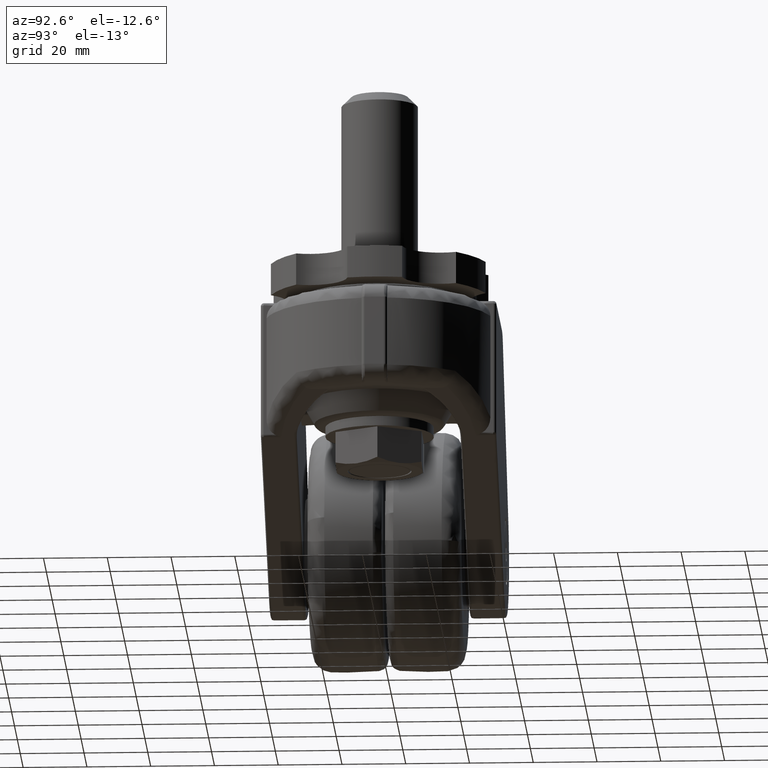
[diagram: clean part render]
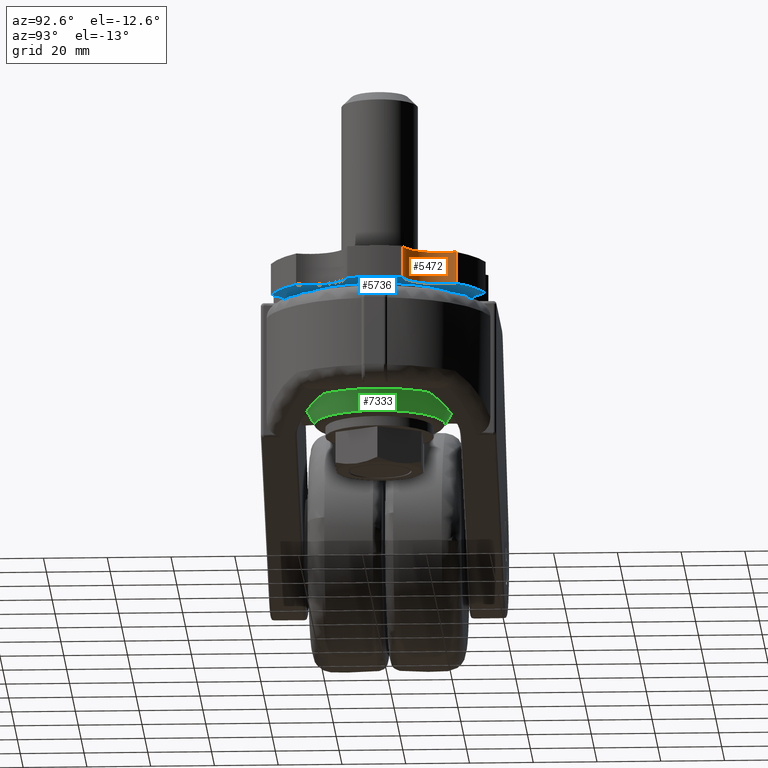
[diagram: same view with three faces highlighted in distinct colors, each labeled with its STEP entity id]
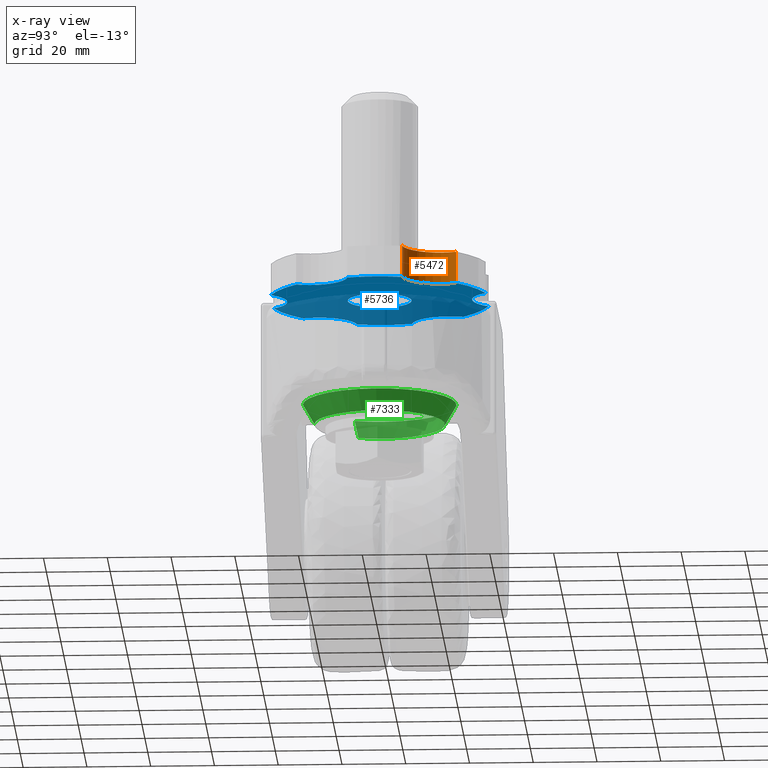
[diagram: x-ray of the same camera — body ghosted, the three highlighted faces saturated]
A machine part, auxiliary view with three faces highlighted in distinct colors.
The next image is the same camera in x-ray (body ghosted, the three faces saturated) — at least one of them is partly hidden behind the body in this view.
Their STEP definitions:

[orange] entity #5472 — the highlighted face is a freeform B-spline surface patch.
#5377=CARTESIAN_POINT('',(33.925804495054663,8.604635730023722,3.0));
#5378=VERTEX_POINT('',#5377);
#5393=CARTESIAN_POINT('',(33.925804495054663,8.604635730023722,-7.0));
#5394=VERTEX_POINT('',#5393);
#5408=CARTESIAN_POINT('',(33.925804495054663,8.604635730023722,-7.0));
#5409=CARTESIAN_POINT('',(33.925804495054663,8.604635730023722,3.0));
#5410=QUASI_UNIFORM_CURVE('',1,(#5408,#5409),.UNSPECIFIED.,.F.,.U.);
#5411=EDGE_CURVE('',#5394,#5378,#5410,.T.);
#5416=CARTESIAN_POINT('',(34.267670104709708,8.564173267682397,-7.250000000000001));
#5417=CARTESIAN_POINT('',(34.267670104709708,8.564173267682397,3.256250000000001));
#5418=CARTESIAN_POINT('',(16.900934444517677,10.367469110203469,-7.250000000000001));
#5419=CARTESIAN_POINT('',(16.900934444517677,10.367469110203469,3.256250000000001));
#5420=CARTESIAN_POINT('',(24.808137595117412,25.934470161201869,-7.250000000000001));
#5421=CARTESIAN_POINT('',(24.808137595117412,25.934470161201869,3.256250000000001));
#5429=(BOUNDED_SURFACE()B_SPLINE_SURFACE(1,2,((#5416,#5418,#5420),(#5417,#5419,#5421)),.UNSPECIFIED.,.F.,.F.,.U.)B_SPLINE_SURFACE_WITH_KNOTS((2,2),(3,3),(0.0,10.506250000000000),(0.0,25.254021671617618),.UNSPECIFIED.)GEOMETRIC_REPRESENTATION_ITEM()RATIONAL_B_SPLINE_SURFACE(((1.0,0.566406236924833,1.0),(1.0,0.566406236924833,1.0)))REPRESENTATION_ITEM('')SURFACE());
#5430=CARTESIAN_POINT('',(24.414735776652751,25.078290949668649,3.0));
#5431=VERTEX_POINT('',#5430);
#5432=CARTESIAN_POINT('',(24.414735776652751,25.078290949668649,3.0));
#5433=CARTESIAN_POINT('',(22.160540336856496,19.616817286234628,3.000000000000000));
#5434=CARTESIAN_POINT('',(25.114736137110540,14.500000030269490,3.0));
#5435=CARTESIAN_POINT('',(28.068931937364578,9.383182774304354,3.000000000000000));
#5436=CARTESIAN_POINT('',(33.925804495054649,8.604635730023711,3.0));
#5444=(BOUNDED_CURVE()B_SPLINE_CURVE(2,(#5432,#5433,#5434,#5435,#5436),.UNSPECIFIED.,.F.,.U.)B_SPLINE_CURVE_WITH_KNOTS((3,2,3),(0.0,0.500000000000000,1.0),.UNSPECIFIED.)CURVE()GEOMETRIC_REPRESENTATION_ITEM()RATIONAL_B_SPLINE_CURVE((1.0,0.897149957038940,1.0,0.897149957038940,1.0))REPRESENTATION_ITEM(''));
#5445=EDGE_CURVE('',#5431,#5378,#5444,.T.);
#5446=ORIENTED_EDGE('',*,*,#5445,.T.);
#5447=ORIENTED_EDGE('',*,*,#5411,.F.);
#5448=CARTESIAN_POINT('',(24.414735776652751,25.078290949668649,-7.0));
#5449=VERTEX_POINT('',#5448);
#5450=CARTESIAN_POINT('',(24.414735776652751,25.078290949668649,-7.0));
#5451=CARTESIAN_POINT('',(22.160540336856496,19.616817286234628,-7.000000000000001));
#5452=CARTESIAN_POINT('',(25.114736137110540,14.500000030269490,-7.0));
#5453=CARTESIAN_POINT('',(28.068931937364578,9.383182774304354,-7.000000000000001));
#5454=CARTESIAN_POINT('',(33.925804495054649,8.604635730023711,-7.0));
#5462=(BOUNDED_CURVE()B_SPLINE_CURVE(2,(#5450,#5451,#5452,#5453,#5454),.UNSPECIFIED.,.F.,.U.)B_SPLINE_CURVE_WITH_KNOTS((3,2,3),(0.0,0.500000000000000,1.0),.UNSPECIFIED.)CURVE()GEOMETRIC_REPRESENTATION_ITEM()RATIONAL_B_SPLINE_CURVE((1.0,0.897149957038940,1.0,0.897149957038940,1.0))REPRESENTATION_ITEM(''));
#5463=EDGE_CURVE('',#5449,#5394,#5462,.T.);
#5464=ORIENTED_EDGE('',*,*,#5463,.F.);
#5465=CARTESIAN_POINT('',(24.414735776652751,25.078290949668649,-7.0));
#5466=CARTESIAN_POINT('',(24.414735776652751,25.078290949668649,3.0));
#5467=QUASI_UNIFORM_CURVE('',1,(#5465,#5466),.UNSPECIFIED.,.F.,.U.);
#5468=EDGE_CURVE('',#5449,#5431,#5467,.T.);
#5469=ORIENTED_EDGE('',*,*,#5468,.T.);
#5470=EDGE_LOOP('',(#5446,#5447,#5464,#5469));
#5471=FACE_OUTER_BOUND('',#5470,.T.);
#5472=ADVANCED_FACE('',(#5471),#5429,.F.);

[blue] entity #5736 — the highlighted face is a freeform B-spline surface patch.
#4309=CARTESIAN_POINT('',(0.087265355341955,-9.999619230638585,-7.000000000000001));
#4310=VERTEX_POINT('',#4309);
#4316=CARTESIAN_POINT('',(-10.0,0.0,-7.0));
#4317=VERTEX_POINT('',#4316);
#4318=CARTESIAN_POINT('',(-10.0,0.0,-7.0));
#4319=CARTESIAN_POINT('',(-10.000000000000002,-10.000000000000002,-6.999999999999999));
#4320=CARTESIAN_POINT('',(0.0,-10.0,-7.0));
#4321=CARTESIAN_POINT('',(0.043633508565271,-10.000000000000002,-7.0));
#4322=CARTESIAN_POINT('',(0.087265355341955,-9.999619230638585,-7.000000000000001));
#4330=(BOUNDED_CURVE()B_SPLINE_CURVE(2,(#4318,#4319,#4320,#4321,#4322),.UNSPECIFIED.,.F.,.U.)B_SPLINE_CURVE_WITH_KNOTS((3,2,3),(0.500000000000000,0.750000000000000,0.751539894347608),.UNSPECIFIED.)CURVE()GEOMETRIC_REPRESENTATION_ITEM()RATIONAL_B_SPLINE_CURVE((1.0,0.707106781186548,1.0,0.998195901551586,0.996414028071198))REPRESENTATION_ITEM(''));
#4331=EDGE_CURVE('',#4317,#4310,#4330,.T.);
#4333=CARTESIAN_POINT('',(-1.241280020945216,9.922662138237007,-7.0));
#4334=VERTEX_POINT('',#4333);
#4335=CARTESIAN_POINT('',(-1.241280020945216,9.922662138237007,-7.0));
#4336=CARTESIAN_POINT('',(-10.0,8.826986001238854,-7.000000000000001));
#4337=CARTESIAN_POINT('',(-10.0,0.0,-7.0));
#4345=(BOUNDED_CURVE()B_SPLINE_CURVE(2,(#4335,#4336,#4337),.UNSPECIFIED.,.F.,.U.)B_SPLINE_CURVE_WITH_KNOTS((3,3),(0.271473928975695,0.500000000000000),.UNSPECIFIED.)CURVE()GEOMETRIC_REPRESENTATION_ITEM()RATIONAL_B_SPLINE_CURVE((0.954005430265027,0.732265053899599,1.0))REPRESENTATION_ITEM(''));
#4346=EDGE_CURVE('',#4334,#4317,#4345,.T.);
#4396=CARTESIAN_POINT('',(10.0,0.0,-7.0));
#4397=VERTEX_POINT('',#4396);
#4398=CARTESIAN_POINT('',(10.0,0.0,-7.0));
#4399=CARTESIAN_POINT('',(10.000000000000002,10.000000000000002,-6.999999999999999));
#4400=CARTESIAN_POINT('',(0.0,10.0,-7.0));
#4401=CARTESIAN_POINT('',(-0.623049275483582,9.999999999999998,-7.000000000000001));
#4402=CARTESIAN_POINT('',(-1.241280020945216,9.922662138237007,-6.999999999999999));
#4410=(BOUNDED_CURVE()B_SPLINE_CURVE(2,(#4398,#4399,#4400,#4401,#4402),.UNSPECIFIED.,.F.,.U.)B_SPLINE_CURVE_WITH_KNOTS((3,2,3),(0.0,0.250000000000000,0.271473928975695),.UNSPECIFIED.)CURVE()GEOMETRIC_REPRESENTATION_ITEM()RATIONAL_B_SPLINE_CURVE((1.0,0.707106781186548,1.0,0.974841727286949,0.954005430265027))REPRESENTATION_ITEM(''));
#4411=EDGE_CURVE('',#4397,#4334,#4410,.T.);
#4413=CARTESIAN_POINT('',(0.087265355341955,-9.999619230638585,-7.000000000000002));
#4414=CARTESIAN_POINT('',(9.999999999999998,-9.913112105239522,-6.999999999999998));
#4415=CARTESIAN_POINT('',(10.0,0.0,-7.0));
#4423=(BOUNDED_CURVE()B_SPLINE_CURVE(2,(#4413,#4414,#4415),.UNSPECIFIED.,.F.,.U.)B_SPLINE_CURVE_WITH_KNOTS((3,3),(0.751539894347607,1.0),.UNSPECIFIED.)CURVE()GEOMETRIC_REPRESENTATION_ITEM()RATIONAL_B_SPLINE_CURVE((0.996414028071200,0.708910879634961,1.0))REPRESENTATION_ITEM(''));
#4424=EDGE_CURVE('',#4310,#4397,#4423,.T.);
#5056=CARTESIAN_POINT('',(-33.925804934236801,8.604635934431780,-7.0));
#5057=VERTEX_POINT('',#5056);
#5063=CARTESIAN_POINT('',(-33.925805495054753,-8.604635730023711,-7.0));
#5064=VERTEX_POINT('',#5063);
#5065=CARTESIAN_POINT('',(-33.925804934236787,8.604635934431769,-7.0));
#5066=CARTESIAN_POINT('',(-36.108207333125854,0.000000173324442,-7.0));
#5067=CARTESIAN_POINT('',(-33.925805495054753,-8.604635730023711,-7.0));
#5075=(BOUNDED_CURVE()B_SPLINE_CURVE(2,(#5065,#5066,#5067),.UNSPECIFIED.,.F.,.U.)CURVE()GEOMETRIC_REPRESENTATION_ITEM()QUASI_UNIFORM_CURVE()RATIONAL_B_SPLINE_CURVE((1.0,0.969308713586864,1.0))REPRESENTATION_ITEM(''));
#5076=EDGE_CURVE('',#5057,#5064,#5075,.T.);
#5118=CARTESIAN_POINT('',(-24.414735776652751,-25.078290949668649,-7.0));
#5119=VERTEX_POINT('',#5118);
#5120=CARTESIAN_POINT('',(-24.414735776652751,-25.078290949668649,-7.0));
#5121=CARTESIAN_POINT('',(-22.160541410148308,-19.616816971440102,-7.000000000000002));
#5122=CARTESIAN_POINT('',(-25.114737232491709,-14.499999865064630,-7.0));
#5123=CARTESIAN_POINT('',(-28.068933054835121,-9.383182758689154,-7.000000000000002));
#5124=CARTESIAN_POINT('',(-33.925805495054753,-8.604635730023713,-7.0));
#5132=(BOUNDED_CURVE()B_SPLINE_CURVE(2,(#5120,#5121,#5122,#5123,#5124),.UNSPECIFIED.,.F.,.U.)B_SPLINE_CURVE_WITH_KNOTS((3,2,3),(0.0,0.500000000000000,1.0),.UNSPECIFIED.)CURVE()GEOMETRIC_REPRESENTATION_ITEM()RATIONAL_B_SPLINE_CURVE((1.0,0.897149960549966,1.0,0.897149960549966,1.0))REPRESENTATION_ITEM(''));
#5133=EDGE_CURVE('',#5119,#5064,#5132,.T.);
#5173=CARTESIAN_POINT('',(-9.511069392596539,-33.682926882337902,-7.0));
#5174=VERTEX_POINT('',#5173);
#5175=CARTESIAN_POINT('',(-24.414735776652751,-25.078290949668649,-7.0));
#5176=CARTESIAN_POINT('',(-18.054103774965707,-31.270624789537539,-7.0));
#5177=CARTESIAN_POINT('',(-9.511069392596539,-33.682926882337902,-7.0));
#5185=(BOUNDED_CURVE()B_SPLINE_CURVE(2,(#5175,#5176,#5177),.UNSPECIFIED.,.F.,.U.)CURVE()GEOMETRIC_REPRESENTATION_ITEM()QUASI_UNIFORM_CURVE()RATIONAL_B_SPLINE_CURVE((1.0,0.969308713202774,1.0))REPRESENTATION_ITEM(''));
#5186=EDGE_CURVE('',#5119,#5174,#5185,.T.);
#5228=CARTESIAN_POINT('',(9.511069157583881,-33.682926884100453,-7.0));
#5229=VERTEX_POINT('',#5228);
#5230=CARTESIAN_POINT('',(9.511069157583881,-33.682926884100453,-7.0));
#5231=CARTESIAN_POINT('',(5.908391493574867,-28.999999965065786,-7.0));
#5232=CARTESIAN_POINT('',(-0.000000070951713,-29.0,-7.0));
#5233=CARTESIAN_POINT('',(-5.908391635478290,-29.000000034934217,-7.0));
#5234=CARTESIAN_POINT('',(-9.511069392596534,-33.682926882337910,-7.0));
#5242=(BOUNDED_CURVE()B_SPLINE_CURVE(2,(#5230,#5231,#5232,#5233,#5234),.UNSPECIFIED.,.F.,.U.)B_SPLINE_CURVE_WITH_KNOTS((3,2,3),(0.0,0.500000000000000,1.0),.UNSPECIFIED.)CURVE()GEOMETRIC_REPRESENTATION_ITEM()RATIONAL_B_SPLINE_CURVE((1.0,0.897149958988129,1.0,0.897149958988129,1.0))REPRESENTATION_ITEM(''));
#5243=EDGE_CURVE('',#5229,#5174,#5242,.T.);
#5283=CARTESIAN_POINT('',(24.414735102458049,-25.078291152314200,-7.0));
#5284=VERTEX_POINT('',#5283);
#5285=CARTESIAN_POINT('',(9.511069157583878,-33.682926884100453,-7.0));
#5286=CARTESIAN_POINT('',(18.054103368746318,-31.270624963974704,-7.0));
#5287=CARTESIAN_POINT('',(24.414735102458049,-25.078291152314200,-7.0));
#5295=(BOUNDED_CURVE()B_SPLINE_CURVE(2,(#5285,#5286,#5287),.UNSPECIFIED.,.F.,.U.)CURVE()GEOMETRIC_REPRESENTATION_ITEM()QUASI_UNIFORM_CURVE()RATIONAL_B_SPLINE_CURVE((1.0,0.969308714599837,1.0))REPRESENTATION_ITEM(''));
#5296=EDGE_CURVE('',#5229,#5284,#5295,.T.);
#5338=CARTESIAN_POINT('',(33.925804934236801,-8.604635934431721,-7.0));
#5339=VERTEX_POINT('',#5338);
#5340=CARTESIAN_POINT('',(33.925804934236801,-8.604635934431721,-7.0));
#5341=CARTESIAN_POINT('',(28.068932211495977,-9.383182535004474,-7.000000000000002));
#5342=CARTESIAN_POINT('',(25.114736256691110,-14.499999823149860,-7.0));
#5343=CARTESIAN_POINT('',(22.160540301886261,-19.616817111295237,-7.000000000000002));
#5344=CARTESIAN_POINT('',(24.414735102458060,-25.078291152314200,-7.0));
#5352=(BOUNDED_CURVE()B_SPLINE_CURVE(2,(#5340,#5341,#5342,#5343,#5344),.UNSPECIFIED.,.F.,.U.)B_SPLINE_CURVE_WITH_KNOTS((3,2,3),(0.0,0.500000000000000,1.0),.UNSPECIFIED.)CURVE()GEOMETRIC_REPRESENTATION_ITEM()RATIONAL_B_SPLINE_CURVE((1.0,0.897149953923727,1.0,0.897149953923727,1.0))REPRESENTATION_ITEM(''));
#5353=EDGE_CURVE('',#5339,#5284,#5352,.T.);
#5393=CARTESIAN_POINT('',(33.925804495054663,8.604635730023722,-7.0));
#5394=VERTEX_POINT('',#5393);
#5395=CARTESIAN_POINT('',(33.925804934236801,-8.604635934431729,-7.0));
#5396=CARTESIAN_POINT('',(36.108207365290191,-0.000000046508894,-7.0));
#5397=CARTESIAN_POINT('',(33.925804495054663,8.604635730023722,-7.0));
#5405=(BOUNDED_CURVE()B_SPLINE_CURVE(2,(#5395,#5396,#5397),.UNSPECIFIED.,.F.,.U.)CURVE()GEOMETRIC_REPRESENTATION_ITEM()QUASI_UNIFORM_CURVE()RATIONAL_B_SPLINE_CURVE((1.0,0.969308712723427,1.0))REPRESENTATION_ITEM(''));
#5406=EDGE_CURVE('',#5339,#5394,#5405,.T.);
#5448=CARTESIAN_POINT('',(24.414735776652751,25.078290949668649,-7.0));
#5449=VERTEX_POINT('',#5448);
#5450=CARTESIAN_POINT('',(24.414735776652751,25.078290949668649,-7.0));
#5451=CARTESIAN_POINT('',(22.160540336856496,19.616817286234628,-7.000000000000001));
#5452=CARTESIAN_POINT('',(25.114736137110540,14.500000030269490,-7.0));
#5453=CARTESIAN_POINT('',(28.068931937364578,9.383182774304354,-7.000000000000001));
#5454=CARTESIAN_POINT('',(33.925804495054649,8.604635730023711,-7.0));
#5462=(BOUNDED_CURVE()B_SPLINE_CURVE(2,(#5450,#5451,#5452,#5453,#5454),.UNSPECIFIED.,.F.,.U.)B_SPLINE_CURVE_WITH_KNOTS((3,2,3),(0.0,0.500000000000000,1.0),.UNSPECIFIED.)CURVE()GEOMETRIC_REPRESENTATION_ITEM()RATIONAL_B_SPLINE_CURVE((1.0,0.897149957038940,1.0,0.897149957038940,1.0))REPRESENTATION_ITEM(''));
#5463=EDGE_CURVE('',#5449,#5394,#5462,.T.);
#5503=CARTESIAN_POINT('',(9.511069392596530,33.682926882337902,-7.0));
#5504=VERTEX_POINT('',#5503);
#5505=CARTESIAN_POINT('',(24.414735776652751,25.078290949668649,-7.0));
#5506=CARTESIAN_POINT('',(18.054103774965704,31.270624789537546,-6.999999999999999));
#5507=CARTESIAN_POINT('',(9.511069392596530,33.682926882337902,-7.0));
#5515=(BOUNDED_CURVE()B_SPLINE_CURVE(2,(#5505,#5506,#5507),.UNSPECIFIED.,.F.,.U.)CURVE()GEOMETRIC_REPRESENTATION_ITEM()QUASI_UNIFORM_CURVE()RATIONAL_B_SPLINE_CURVE((1.0,0.969308713202774,1.0))REPRESENTATION_ITEM(''));
#5516=EDGE_CURVE('',#5449,#5504,#5515,.T.);
#5558=CARTESIAN_POINT('',(-9.511069157583881,33.682926884100453,-7.0));
#5559=VERTEX_POINT('',#5558);
#5560=CARTESIAN_POINT('',(-9.511069157583881,33.682926884100453,-7.0));
#5561=CARTESIAN_POINT('',(-5.908391493574871,28.999999965065797,-7.0));
#5562=CARTESIAN_POINT('',(0.000000070951707,29.0,-7.0));
#5563=CARTESIAN_POINT('',(5.908391635478282,29.000000034934210,-7.0));
#5564=CARTESIAN_POINT('',(9.511069392596527,33.682926882337902,-7.0));
#5572=(BOUNDED_CURVE()B_SPLINE_CURVE(2,(#5560,#5561,#5562,#5563,#5564),.UNSPECIFIED.,.F.,.U.)B_SPLINE_CURVE_WITH_KNOTS((3,2,3),(0.0,0.500000000000000,1.0),.UNSPECIFIED.)CURVE()GEOMETRIC_REPRESENTATION_ITEM()RATIONAL_B_SPLINE_CURVE((1.0,0.897149958988130,1.0,0.897149958988130,1.0))REPRESENTATION_ITEM(''));
#5573=EDGE_CURVE('',#5559,#5504,#5572,.T.);
#5613=CARTESIAN_POINT('',(-24.414735776652702,25.078290949668698,-7.0));
#5614=VERTEX_POINT('',#5613);
#5615=CARTESIAN_POINT('',(-9.511069157583881,33.682926884100453,-7.0));
#5616=CARTESIAN_POINT('',(-18.054103688543037,31.270624873673498,-7.0));
#5617=CARTESIAN_POINT('',(-24.414735776652702,25.078290949668698,-7.0));
#5625=(BOUNDED_CURVE()B_SPLINE_CURVE(2,(#5615,#5616,#5617),.UNSPECIFIED.,.F.,.U.)CURVE()GEOMETRIC_REPRESENTATION_ITEM()QUASI_UNIFORM_CURVE()RATIONAL_B_SPLINE_CURVE((1.0,0.969308712406765,1.0))REPRESENTATION_ITEM(''));
#5626=EDGE_CURVE('',#5559,#5614,#5625,.T.);
#5666=CARTESIAN_POINT('',(-33.925804934236801,8.604635934431780,-7.0));
#5667=CARTESIAN_POINT('',(-28.068932694332414,9.383183096116445,-6.999999999999999));
#5668=CARTESIAN_POINT('',(-25.114737086776060,14.500000117451551,-7.0));
#5669=CARTESIAN_POINT('',(-22.160541479219702,19.616817138786647,-6.999999999999999));
#5670=CARTESIAN_POINT('',(-24.414735776652702,25.078290949668698,-7.0));
#5678=(BOUNDED_CURVE()B_SPLINE_CURVE(2,(#5666,#5667,#5668,#5669,#5670),.UNSPECIFIED.,.F.,.U.)B_SPLINE_CURVE_WITH_KNOTS((3,2,3),(0.0,0.500000000000000,1.0),.UNSPECIFIED.)CURVE()GEOMETRIC_REPRESENTATION_ITEM()RATIONAL_B_SPLINE_CURVE((1.0,0.897149965913833,1.0,0.897149965913833,1.0))REPRESENTATION_ITEM(''));
#5679=EDGE_CURVE('',#5057,#5614,#5678,.T.);
#5711=CARTESIAN_POINT('',(-38.496499985956241,-37.047850516871527,-7.0));
#5712=CARTESIAN_POINT('',(38.496501624951968,-37.047850516871527,-7.0));
#5713=CARTESIAN_POINT('',(-38.496499985956241,37.047852926062212,-7.0));
#5714=CARTESIAN_POINT('',(38.496501624951968,37.047852926062212,-7.0));
#5715=B_SPLINE_SURFACE_WITH_KNOTS('',1,1,((#5711,#5713),(#5712,#5714)),.UNSPECIFIED.,.F.,.F.,.U.,(2,2),(2,2),(0.0,76.993001610908209),(0.0,74.095703442933740),.UNSPECIFIED.);
#5716=ORIENTED_EDGE('',*,*,#5679,.T.);
#5717=ORIENTED_EDGE('',*,*,#5626,.F.);
#5718=ORIENTED_EDGE('',*,*,#5573,.T.);
#5719=ORIENTED_EDGE('',*,*,#5516,.F.);
#5720=ORIENTED_EDGE('',*,*,#5463,.T.);
#5721=ORIENTED_EDGE('',*,*,#5406,.F.);
#5722=ORIENTED_EDGE('',*,*,#5353,.T.);
#5723=ORIENTED_EDGE('',*,*,#5296,.F.);
#5724=ORIENTED_EDGE('',*,*,#5243,.T.);
#5725=ORIENTED_EDGE('',*,*,#5186,.F.);
#5726=ORIENTED_EDGE('',*,*,#5133,.T.);
#5727=ORIENTED_EDGE('',*,*,#5076,.F.);
#5728=EDGE_LOOP('',(#5716,#5717,#5718,#5719,#5720,#5721,#5722,#5723,#5724,#5725,#5726,#5727));
#5729=FACE_OUTER_BOUND('',#5728,.T.);
#5730=ORIENTED_EDGE('',*,*,#4331,.T.);
#5731=ORIENTED_EDGE('',*,*,#4424,.T.);
#5732=ORIENTED_EDGE('',*,*,#4411,.T.);
#5733=ORIENTED_EDGE('',*,*,#4346,.T.);
#5734=EDGE_LOOP('',(#5730,#5731,#5732,#5733));
#5735=FACE_BOUND('',#5734,.T.);
#5736=ADVANCED_FACE('',(#5729,#5735),#5715,.F.);

[green] entity #7333 — the highlighted face is a freeform B-spline surface patch.
#7132=CARTESIAN_POINT('',(1.608237189919782,-20.434590996298549,-46.749999999956451));
#7133=VERTEX_POINT('',#7132);
#7134=CARTESIAN_POINT('',(-19.060155197586390,-7.541181597598106,-46.749999999999339));
#7135=VERTEX_POINT('',#7134);
#7151=CARTESIAN_POINT('',(1.891352058315031,-24.031906479095721,-40.499999999971877));
#7152=VERTEX_POINT('',#7151);
#7153=CARTESIAN_POINT('',(1.608237189919782,-20.434590996298549,-46.749999999956451));
#7154=CARTESIAN_POINT('',(1.891352058315031,-24.031906479095721,-40.499999999971877));
#7155=QUASI_UNIFORM_CURVE('',1,(#7153,#7154),.UNSPECIFIED.,.F.,.U.);
#7156=EDGE_CURVE('',#7133,#7152,#7155,.T.);
#7158=CARTESIAN_POINT('',(-22.415514324116788,-8.868734927450920,-40.499999999987047));
#7159=VERTEX_POINT('',#7158);
#7175=CARTESIAN_POINT('',(-19.060155197586390,-7.541181597598106,-46.749999999999339));
#7176=CARTESIAN_POINT('',(-22.415514324116788,-8.868734927450920,-40.499999999987047));
#7177=QUASI_UNIFORM_CURVE('',1,(#7175,#7176),.UNSPECIFIED.,.F.,.U.);
#7178=EDGE_CURVE('',#7135,#7159,#7177,.T.);
#7183=CARTESIAN_POINT('',(1.601159317943214,-20.344658109020308,-46.906250000351989));
#7184=CARTESIAN_POINT('',(21.945817426963526,-18.743498791077094,-46.906250000351989));
#7185=CARTESIAN_POINT('',(20.344658109020308,1.601159317943214,-46.906250000351989));
#7186=CARTESIAN_POINT('',(18.743498791077094,21.945817426963526,-46.906250000351989));
#7187=CARTESIAN_POINT('',(-1.601159317943214,20.344658109020308,-46.906250000351989));
#7188=CARTESIAN_POINT('',(-21.945817426963526,18.743498791077094,-46.906250000351989));
#7189=CARTESIAN_POINT('',(-20.344658109020308,-1.601159317943214,-46.906250000351989));
#7190=CARTESIAN_POINT('',(-20.104130187282308,-4.657356336312920,-46.906250000351989));
#7191=CARTESIAN_POINT('',(-18.976271219234864,-7.507992764274656,-46.906250000351996));
#7192=CARTESIAN_POINT('',(1.898606876659429,-24.124087688343881,-40.339843749991189));
#7193=CARTESIAN_POINT('',(26.022694565003313,-22.225480811684452,-40.339843749991196));
#7194=CARTESIAN_POINT('',(24.124087688343881,1.898606876659429,-40.339843749991189));
#7195=CARTESIAN_POINT('',(22.225480811684452,26.022694565003313,-40.339843749991196));
#7196=CARTESIAN_POINT('',(-1.898606876659429,24.124087688343881,-40.339843749991189));
#7197=CARTESIAN_POINT('',(-26.022694565003313,22.225480811684452,-40.339843749991196));
#7198=CARTESIAN_POINT('',(-24.124087688343881,-1.898606876659429,-40.339843749991189));
#7199=CARTESIAN_POINT('',(-23.838876865708819,-5.522553982033333,-40.339843749991189));
#7200=CARTESIAN_POINT('',(-22.501495401765826,-8.902753481441282,-40.339843749991182));
#7208=(BOUNDED_SURFACE()B_SPLINE_SURFACE(2,1,((#7183,#7192),(#7184,#7193),(#7185,#7194),(#7186,#7195),(#7187,#7196),(#7188,#7197),(#7189,#7198),(#7190,#7199),(#7191,#7200)),.UNSPECIFIED.,.F.,.F.,.U.)B_SPLINE_SURFACE_WITH_KNOTS((3,2,2,2,3),(2,2),(0.0,40.093692675484427,80.187385350968867,120.281078026453300,128.299816561550190),(0.0,7.582232787248733),.UNSPECIFIED.)GEOMETRIC_REPRESENTATION_ITEM()RATIONAL_B_SPLINE_SURFACE(((1.0,1.0),(0.707106781186548,0.707106781186548),(1.0,1.0),(0.707106781186548,0.707106781186548),(1.0,1.0),(0.707106781186548,0.707106781186548),(1.0,1.0),(0.941421356237310,0.941421356237310),(0.906274169979695,0.906274169979695)))REPRESENTATION_ITEM('')SURFACE());
#7209=CARTESIAN_POINT('',(-20.497778807568800,0.0,-46.750000000000000));
#7210=VERTEX_POINT('',#7209);
#7211=CARTESIAN_POINT('',(-19.060155197586386,-7.541181597598106,-46.749999999999339));
#7212=CARTESIAN_POINT('',(-20.497778807568796,-3.907622483904815,-46.750000000000007));
#7213=CARTESIAN_POINT('',(-20.497778807568800,0.0,-46.750000000000000));
#7221=(BOUNDED_CURVE()B_SPLINE_CURVE(2,(#7211,#7212,#7213),.UNSPECIFIED.,.F.,.U.)B_SPLINE_CURVE_WITH_KNOTS((3,3),(0.937532549939391,1.0),.UNSPECIFIED.)CURVE()GEOMETRIC_REPRESENTATION_ITEM()RATIONAL_B_SPLINE_CURVE((0.890203187501275,0.926814829922719,1.0))REPRESENTATION_ITEM(''));
#7222=EDGE_CURVE('',#7135,#7210,#7221,.T.);
#7223=ORIENTED_EDGE('',*,*,#7222,.F.);
#7224=ORIENTED_EDGE('',*,*,#7178,.T.);
#7225=CARTESIAN_POINT('',(-24.106217903846151,0.0,-40.500000000000000));
#7226=VERTEX_POINT('',#7225);
#7227=CARTESIAN_POINT('',(-22.415514324116788,-8.868734927450920,-40.499999999987054));
#7228=CARTESIAN_POINT('',(-24.106217903846158,-4.595522274345261,-40.499999999999993));
#7229=CARTESIAN_POINT('',(-24.106217903846151,0.0,-40.500000000000000));
#7237=(BOUNDED_CURVE()B_SPLINE_CURVE(2,(#7227,#7228,#7229),.UNSPECIFIED.,.F.,.U.)B_SPLINE_CURVE_WITH_KNOTS((3,3),(0.437532549938281,0.500000000000000),.UNSPECIFIED.)CURVE()GEOMETRIC_REPRESENTATION_ITEM()RATIONAL_B_SPLINE_CURVE((0.890203187499974,0.926814829921418,1.0))REPRESENTATION_ITEM(''));
#7238=EDGE_CURVE('',#7159,#7226,#7237,.T.);
#7239=ORIENTED_EDGE('',*,*,#7238,.T.);
#7240=CARTESIAN_POINT('',(24.106217903846151,0.0,-40.500000000000000));
#7241=VERTEX_POINT('',#7240);
#7242=CARTESIAN_POINT('',(-24.106217903846151,0.0,-40.500000000000000));
#7243=CARTESIAN_POINT('',(-24.106217903846147,24.106217903846147,-40.500000000000000));
#7244=CARTESIAN_POINT('',(0.0,24.106217903846151,-40.500000000000000));
#7245=CARTESIAN_POINT('',(24.106217903846147,24.106217903846147,-40.500000000000000));
#7246=CARTESIAN_POINT('',(24.106217903846151,0.0,-40.500000000000000));
#7254=(BOUNDED_CURVE()B_SPLINE_CURVE(2,(#7242,#7243,#7244,#7245,#7246),.UNSPECIFIED.,.F.,.U.)B_SPLINE_CURVE_WITH_KNOTS((3,2,3),(0.500000000000000,0.750000000000000,1.0),.UNSPECIFIED.)CURVE()GEOMETRIC_REPRESENTATION_ITEM()RATIONAL_B_SPLINE_CURVE((1.0,0.707106781186547,1.0,0.707106781186547,1.0))REPRESENTATION_ITEM(''));
#7255=EDGE_CURVE('',#7226,#7241,#7254,.T.);
#7256=ORIENTED_EDGE('',*,*,#7255,.T.);
#7257=CARTESIAN_POINT('',(24.106217903846151,0.0,-40.500000000000000));
#7258=CARTESIAN_POINT('',(24.106217903846154,-22.283558619859335,-40.500000000000000));
#7259=CARTESIAN_POINT('',(1.891352058315031,-24.031906479095717,-40.499999999971884));
#7267=(BOUNDED_CURVE()B_SPLINE_CURVE(2,(#7257,#7258,#7259),.UNSPECIFIED.,.F.,.U.)B_SPLINE_CURVE_WITH_KNOTS((3,3),(0.0,0.236331300630490),.UNSPECIFIED.)CURVE()GEOMETRIC_REPRESENTATION_ITEM()RATIONAL_B_SPLINE_CURVE((1.0,0.723120658607864,0.969723356167064))REPRESENTATION_ITEM(''));
#7268=EDGE_CURVE('',#7241,#7152,#7267,.T.);
#7269=ORIENTED_EDGE('',*,*,#7268,.T.);
#7270=ORIENTED_EDGE('',*,*,#7156,.F.);
#7271=CARTESIAN_POINT('',(20.497778807568800,0.0,-46.750000000000000));
#7272=VERTEX_POINT('',#7271);
#7273=CARTESIAN_POINT('',(20.497778807568800,0.0,-46.750000000000000));
#7274=CARTESIAN_POINT('',(20.497778807568807,-18.947951829370961,-46.750000000000007));
#7275=CARTESIAN_POINT('',(1.608237189919782,-20.434590996298553,-46.749999999956451));
#7283=(BOUNDED_CURVE()B_SPLINE_CURVE(2,(#7273,#7274,#7275),.UNSPECIFIED.,.F.,.U.)B_SPLINE_CURVE_WITH_KNOTS((3,3),(0.500000000000000,0.736331300628629),.UNSPECIFIED.)CURVE()GEOMETRIC_REPRESENTATION_ITEM()RATIONAL_B_SPLINE_CURVE((1.0,0.723120658610044,0.969723356163181))REPRESENTATION_ITEM(''));
#7284=EDGE_CURVE('',#7272,#7133,#7283,.T.);
#7285=ORIENTED_EDGE('',*,*,#7284,.F.);
#7286=CARTESIAN_POINT('',(10.886024349341239,17.368172324871342,-46.750000000132623));
#7287=VERTEX_POINT('',#7286);
#7288=CARTESIAN_POINT('',(10.886024349341241,17.368172324871335,-46.750000000132616));
#7289=CARTESIAN_POINT('',(20.497778807568793,11.343716146430644,-46.750000000000007));
#7290=CARTESIAN_POINT('',(20.497778807568800,0.0,-46.750000000000000));
#7298=(BOUNDED_CURVE()B_SPLINE_CURVE(2,(#7288,#7289,#7290),.UNSPECIFIED.,.F.,.U.)B_SPLINE_CURVE_WITH_KNOTS((3,3),(0.340826728946455,0.500000000000000),.UNSPECIFIED.)CURVE()GEOMETRIC_REPRESENTATION_ITEM()RATIONAL_B_SPLINE_CURVE((0.864498809753871,0.813516913168245,1.0))REPRESENTATION_ITEM(''));
#7299=EDGE_CURVE('',#7287,#7272,#7298,.T.);
#7300=ORIENTED_EDGE('',*,*,#7299,.F.);
#7301=CARTESIAN_POINT('',(-17.962340494963360,9.874880251369495,-46.750000000343412));
#7302=VERTEX_POINT('',#7301);
#7303=CARTESIAN_POINT('',(-17.962340494963360,9.874880251369495,-46.750000000343405));
#7304=CARTESIAN_POINT('',(-12.122352594155718,20.497778807568803,-46.750000000000014));
#7305=CARTESIAN_POINT('',(0.0,20.497778807568800,-46.750000000000000));
#7306=CARTESIAN_POINT('',(5.892875064117111,20.497778807568796,-46.750000000000007));
#7307=CARTESIAN_POINT('',(10.886024349341241,17.368172324871345,-46.750000000132616));
#7315=(BOUNDED_CURVE()B_SPLINE_CURVE(2,(#7303,#7304,#7305,#7306,#7307),.UNSPECIFIED.,.F.,.U.)B_SPLINE_CURVE_WITH_KNOTS((3,2,3),(0.082050816103209,0.250000000000000,0.340826728946455),.UNSPECIFIED.)CURVE()GEOMETRIC_REPRESENTATION_ITEM()RATIONAL_B_SPLINE_CURVE((0.870842360846144,0.803235291725505,1.0,0.893589868018303,0.864498809753871))REPRESENTATION_ITEM(''));
#7316=EDGE_CURVE('',#7302,#7287,#7315,.T.);
#7317=ORIENTED_EDGE('',*,*,#7316,.F.);
#7318=CARTESIAN_POINT('',(-20.497778807568800,0.0,-46.750000000000000));
#7319=CARTESIAN_POINT('',(-20.497778807568803,5.262935082247365,-46.750000000000007));
#7320=CARTESIAN_POINT('',(-17.962340494963360,9.874880251369495,-46.750000000343405));
#7328=(BOUNDED_CURVE()B_SPLINE_CURVE(2,(#7318,#7319,#7320),.UNSPECIFIED.,.F.,.U.)B_SPLINE_CURVE_WITH_KNOTS((3,3),(0.0,0.082050816103209),.UNSPECIFIED.)CURVE()GEOMETRIC_REPRESENTATION_ITEM()RATIONAL_B_SPLINE_CURVE((1.0,0.903871489461042,0.870842360846144))REPRESENTATION_ITEM(''));
#7329=EDGE_CURVE('',#7210,#7302,#7328,.T.);
#7330=ORIENTED_EDGE('',*,*,#7329,.F.);
#7331=EDGE_LOOP('',(#7223,#7224,#7239,#7256,#7269,#7270,#7285,#7300,#7317,#7330));
#7332=FACE_OUTER_BOUND('',#7331,.T.);
#7333=ADVANCED_FACE('',(#7332),#7208,.T.);